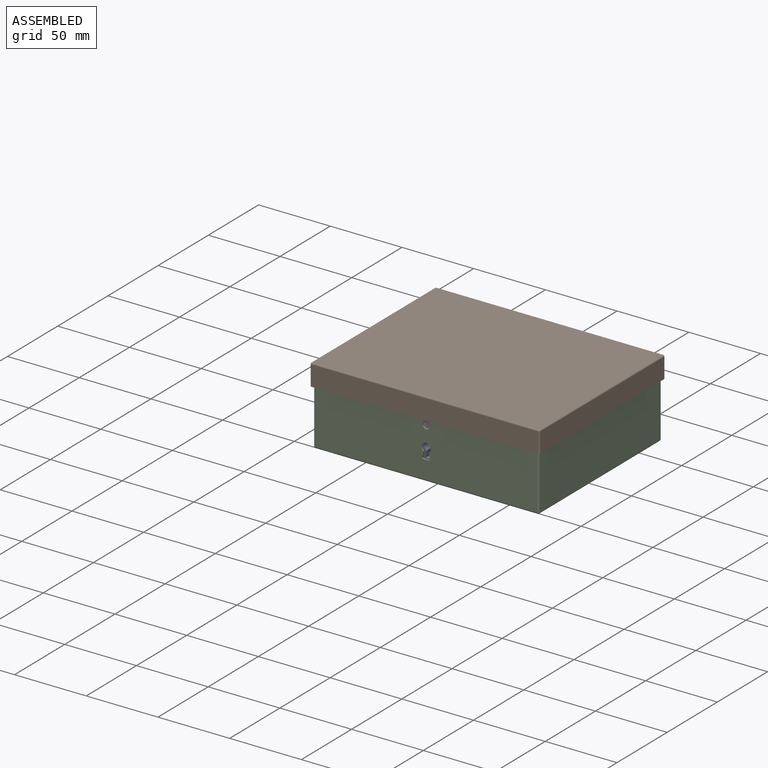
[diagram: assembled view]
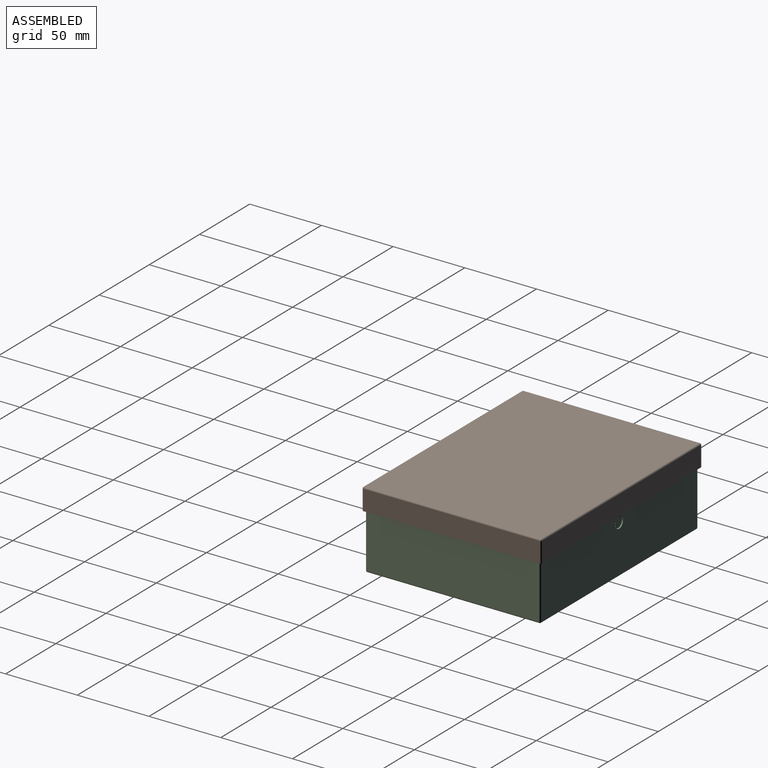
[diagram: assembled view, second angle]
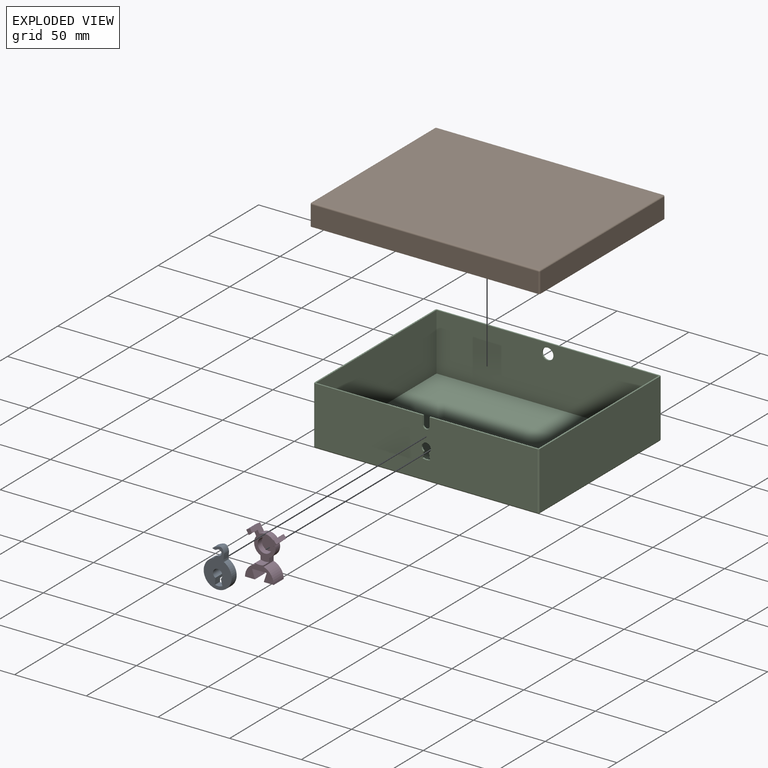
[diagram: exploded view]
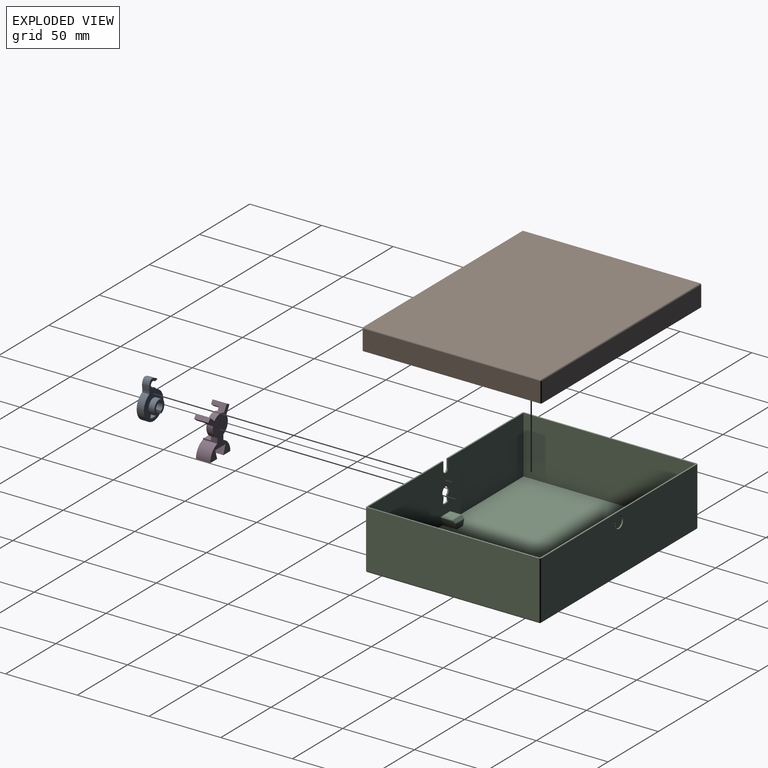
[diagram: exploded view, second angle]
ASSEMBLY  parts=4 mates=3
PART A: 12 faces, bbox 19.5x9x26.9 mm
  f0: cylinder r=5mm len=10mm, axis (0,-1,0), area 107.3mm2, adj f1,f3,f4,f11
  f1: plane 9x4.26mm, normal (0.95,0,-0.3), area 29.9mm2, adj f0,f2,f4,f5,f9,f11
  f2: cylinder r=3.25mm len=9mm, axis (0,-1,0), area 146.7mm2, adj f1,f3,f4,f5
  f3: plane 9x4.47mm, normal (-1,0,0), area 29.9mm2, adj f0,f2,f4,f5,f9,f11
  f4: plane 10x9.77mm, normal (0,1,0), area 37.8mm2, adj f0,f1,f2,f3
  f5: plane 26.88x19.5mm, normal (0,-1,0), area 277.5mm2, adj f1,f2,f3,f6,f7,f8,f9,f10
  f6: extruded ~5.04x5mm, area 26.9mm2, adj f5,f7,f10,f11
  f7: cylinder r=9.75mm len=19.5mm, axis (0,-1,0), area 268.9mm2, adj f5,f6,f8,f11
  f8: extruded ~9.47x7.44mm, area 96.1mm2, adj f5,f7,f10,f11
  f9: cylinder r=7.5mm len=5.15mm, axis (0,-1,0), area 26.6mm2, adj f1,f3,f5,f11
  f10: cylinder r=2mm len=5mm, axis (0,-1,0), area 34.9mm2, adj f5,f6,f8,f11
  f11: plane 26.88x19.5mm, normal (0,1,0), area 239.7mm2, adj f0,f1,f3,f6,f7,f8,f9,f10
PART B: 30 faces, bbox 160x125x15 mm
  f0: plane 123x14mm, normal (1,0,0), area 1722mm2, adj f5,f18,f22,f24
  f1: plane 158x14mm, normal (0,1,0), area 2212mm2, adj f5,f20,f24,f26
  f2: plane 123x14mm, normal (-1,0,0), area 1722mm2, adj f5,f21,f26,f28
  f3: plane 158x14mm, normal (0,-1,0), area 2212mm2, adj f5,f19,f22,f28
  f4: plane 158x123mm, normal (0,0,1), area 19434mm2, adj f18,f19,f20,f21
  f5: plane 160x125mm, normal (0,0,-1), area 565.1mm2, adj f0,f1,f2,f3,f6,f7,f8,f9
  f6: plane 123x14mm, normal (-1,0,0), area 1722mm2, adj f5,f7,f9,f10
  f7: plane 158x14mm, normal (0,-1,0), area 2167.8mm2, adj f5,f6,f8,f10,f16
  f8: plane 123x14mm, normal (1,0,0), area 1722mm2, adj f5,f7,f9,f10
  f9: plane 158x14mm, normal (0,1,0), area 2199.4mm2, adj f5,f6,f8,f10,f11
  f10: plane 158x123mm, normal (0,0,-1), area 19426mm2, adj f6,f7,f8,f9,f12,f13,f14,f15
  f11: cylinder r=2mm len=14mm, axis (0,-1,0), area 163.4mm2, adj f9,f12,f13,f14,f15
  f12: plane 5.53x2mm, normal (1,0,0), area 11.1mm2, adj f10,f11,f14,f15
  f13: plane 5.47x2mm, normal (-1,0,0), area 10.9mm2, adj f10,f11,f14,f15
  f14: plane 7.5x4mm, normal (0,1,0), area 28.3mm2, adj f10,f11,f12,f13
  f15: plane 5.47x4mm, normal (0,-1,0), area 15.7mm2, adj f10,f11,f12,f13
  f16: cylinder r=3.75mm len=7.5mm, axis (0,1,0), area 117.8mm2, adj f7,f17
  f17: plane 7.5x7.5mm, normal (0,-1,0), area 44.2mm2, adj f16
  f18: cylinder r=1mm len=123mm, axis (0,-1,0), area 193.2mm2, adj f0,f4,f23,f25
  f19: cylinder r=1mm len=158mm, axis (-1,0,0), area 248.2mm2, adj f3,f4,f23,f29
  f20: cylinder r=1mm len=158mm, axis (1,0,0), area 248.2mm2, adj f1,f4,f25,f27
  f21: cylinder r=1mm len=123mm, axis (0,1,0), area 193.2mm2, adj f2,f4,f27,f29
  f22: cylinder r=1mm len=14mm, axis (0,0,1), area 22mm2, adj f0,f3,f5,f23
  f23: sphere r=1mm, area 1.6mm2, adj f18,f19,f22
  f24: cylinder r=1mm len=14mm, axis (0,0,-1), area 22mm2, adj f0,f1,f5,f25
  f25: sphere r=1mm, area 1.6mm2, adj f18,f20,f24
  f26: cylinder r=1mm len=14mm, axis (0,0,1), area 22mm2, adj f1,f2,f5,f27
  f27: sphere r=1mm, area 1.6mm2, adj f20,f21,f26
  f28: cylinder r=1mm len=14mm, axis (0,0,-1), area 22mm2, adj f2,f3,f5,f29
  f29: sphere r=1mm, area 1.6mm2, adj f19,f21,f28
PART C: 38 faces, bbox 157x122x41 mm
  f0: plane 155x40mm, normal (0,1,0), area 6064mm2, adj f6,f7,f9,f10,f11,f12,f13,f16
  f1: plane 155x40mm, normal (0,-1,0), area 6111.7mm2, adj f6,f19,f22,f26,f30,f31,f32,f33
  f2: plane 120x40mm, normal (1,0,0), area 4800mm2, adj f6,f18,f22,f24
  f3: plane 155x40mm, normal (0,1,0), area 6149.7mm2, adj f6,f20,f24,f28,f37
  f4: plane 120x40mm, normal (-1,0,0), area 4800mm2, adj f6,f21,f26,f28
  f5: plane 155x120mm, normal (0,0,-1), area 18600mm2, adj f18,f19,f20,f21
  f6: plane 157x122mm, normal (0,0,1), area 548.6mm2, adj f0,f1,f2,f3,f4,f7,f8,f9
  f7: plane 120x40mm, normal (-1,0,0), area 4800mm2, adj f0,f6,f8,f10
  f8: plane 155x40mm, normal (0,-1,0), area 6149.7mm2, adj f6,f7,f9,f10,f37
  f9: plane 120x40mm, normal (1,0,0), area 4800mm2, adj f0,f6,f8,f10
  f10: plane 155x120mm, normal (0,0,1), area 18540mm2, adj f0,f7,f8,f9,f12,f13,f14
  f11: plane 9x8mm, normal (0,0,1), area 72mm2, adj f0,f15,f16,f17
  f12: plane 10x5.53mm, normal (0.95,0,-0.32), area 57mm2, adj f0,f10,f14,f15,f17
  f13: plane 10x5.53mm, normal (-0.95,0,-0.32), area 57mm2, adj f0,f10,f14,f15,f16
  f14: plane 8.67x4mm, normal (0,1,0), area 29.3mm2, adj f10,f12,f13,f15
  f15: plane 9.68x2mm, normal (0,0.71,0.71), area 26.1mm2, adj f11,f12,f13,f14,f16,f17
  f16: plane 8.47x0.47mm, normal (-0.81,0,0.58), area 4.8mm2, adj f0,f11,f13,f15
  f17: plane 8.47x0.47mm, normal (0.81,0,0.58), area 4.8mm2, adj f0,f11,f12,f15
  f18: cylinder r=1mm len=120mm, axis (0,-1,0), area 188.5mm2, adj f2,f5,f23,f25
  f19: cylinder r=1mm len=155mm, axis (-1,0,0), area 243.5mm2, adj f1,f5,f23,f27
  f20: cylinder r=1mm len=155mm, axis (1,0,0), area 243.5mm2, adj f3,f5,f25,f29
  f21: cylinder r=1mm len=120mm, axis (0,1,0), area 188.5mm2, adj f4,f5,f27,f29
  f22: cylinder r=1mm len=40mm, axis (0,0,-1), area 62.8mm2, adj f1,f2,f6,f23
  f23: sphere r=1mm, area 1.6mm2, adj f18,f19,f22
  f24: cylinder r=1mm len=40mm, axis (0,0,1), area 62.8mm2, adj f2,f3,f6,f25
  f25: sphere r=1mm, area 1.6mm2, adj f18,f20,f24
  f26: cylinder r=1mm len=40mm, axis (0,0,1), area 62.8mm2, adj f1,f4,f6,f27
  f27: sphere r=1mm, area 1.6mm2, adj f19,f21,f26
  f28: cylinder r=1mm len=40mm, axis (0,0,-1), area 62.8mm2, adj f3,f4,f6,f29
  f29: sphere r=1mm, area 1.6mm2, adj f20,f21,f28
  f30: plane 6x1mm, normal (-1,0,0), area 6mm2, adj f0,f1,f6,f31
  f31: cylinder r=2.25mm len=4.5mm, axis (0,1,0), area 7.1mm2, adj f0,f1,f30,f32
  f32: plane 6x1mm, normal (1,0,0), area 6mm2, adj f0,f1,f6,f31
  f33: cylinder r=3.25mm len=6.5mm, axis (0,-1,0), area 16.3mm2, adj f0,f1,f34,f36
  f34: plane 4.41x1mm, normal (0.99,0,-0.16), area 4.5mm2, adj f0,f1,f33,f35
  f35: cylinder r=7.5mm len=5.26mm, axis (0,-1,0), area 5.4mm2, adj f0,f1,f34,f36
  f36: plane 4.41x1mm, normal (-0.99,0,-0.16), area 4.5mm2, adj f0,f1,f33,f35
  f37: cylinder r=4mm len=8mm, axis (0,1,0), area 25.1mm2, adj f3,f8
PART D: 28 faces, bbox 21.9x10x31.3 mm
  f0: plane 10x5.31mm, normal (-0.87,0,-0.5), area 46.6mm2, adj f1,f11,f12,f20,f22,f25
  f1: plane 4.5x4.1mm, normal (0,-1,0), area 9.5mm2, adj f0,f10,f11,f22
  f2: plane 20x10.46mm, normal (0,-1,0), area 108.1mm2, adj f3,f4,f13,f14,f15,f16,f17,f18
  f3: cylinder r=10mm len=10mm, axis (0,-1,0), area 126.6mm2, adj f2,f4,f19,f20
  f4: plane 10x3.59mm, normal (1,0,0), area 21.2mm2, adj f2,f3,f5,f20,f23,f25
  f5: cylinder r=7.5mm len=8.99mm, axis (0,-1,0), area 48.8mm2, adj f4,f6,f20,f25
  f6: plane 10x4.69mm, normal (0.64,0,-0.77), area 46.6mm2, adj f5,f7,f20,f21,f24,f25
  f7: plane 10x2.3mm, normal (0.77,0,0.64), area 30mm2, adj f6,f8,f20,f21
  f8: plane 10x4.21mm, normal (-0.64,0,0.77), area 41.3mm2, adj f7,f9,f20,f21,f24,f25
  f9: cylinder r=7.5mm len=9.5mm, axis (0,-1,0), area 47.1mm2, adj f8,f10,f20,f25
  f10: plane 10x4.76mm, normal (0.87,0,0.5), area 41.2mm2, adj f1,f9,f11,f20,f22,f25
  f11: plane 10x2.6mm, normal (-0.5,0,0.87), area 30mm2, adj f0,f1,f10,f20
  f12: cylinder r=7.5mm len=11.33mm, axis (0,-1,0), area 60.6mm2, adj f0,f13,f20,f25
  f13: plane 10x3.59mm, normal (-1,0,0), area 21.2mm2, adj f2,f12,f14,f20,f23,f25
  f14: cylinder r=10mm len=10mm, axis (0,-1,0), area 126.6mm2, adj f2,f13,f15,f20
  f15: plane 10x6.9mm, normal (0,0,-1), area 69mm2, adj f2,f14,f16,f20
  f16: plane 10x6.2mm, normal (0.95,0,0.31), area 65.1mm2, adj f2,f15,f17,f20
  f17: plane 10.2x10mm, normal (0,0,-1), area 102mm2, adj f2,f16,f18,f20
  f18: plane 10x6.2mm, normal (-0.95,0,0.31), area 65.1mm2, adj f2,f17,f19,f20
  f19: plane 10x6.9mm, normal (0,0,-1), area 69mm2, adj f2,f3,f18,f20
  f20: plane 31.26x21.89mm, normal (0,1,0), area 334.3mm2, adj f0,f3,f4,f5,f6,f7,f8,f9
  f21: plane 4.52x4.23mm, normal (0,-1,0), area 9.5mm2, adj f6,f7,f8,f24
  f22: cylinder r=10mm len=5.5mm, axis (0,-1,0), area 16.8mm2, adj f0,f1,f10,f25
  f23: cylinder r=10mm len=6mm, axis (0,-1,0), area 33.5mm2, adj f2,f4,f13,f25
  f24: cylinder r=10mm len=5.5mm, axis (0,-1,0), area 16.8mm2, adj f6,f8,f21,f25
  f25: plane 18.66x16.74mm, normal (0,-1,0), area 128.8mm2, adj f0,f4,f5,f6,f8,f9,f10,f12
  f26: plane 10x10mm, normal (0,-1,0), area 78.5mm2, adj f27
  f27: cylinder r=5mm len=10mm, axis (0,-1,0), area 130.1mm2, adj f25,f26
PLACE A rot(axis=(0,-1,0),14.6deg) t=(-101.49,45.85,20.86)mm
PLACE B t=(-103.41,104.5,46.33)mm
PLACE C t=(-103.41,104.35,48.41)mm
PLACE D t=(-103.41,45.35,8.21)mm fixed
MATE revolute D.f5 <-> A.f0  axis (0,-1,0) through (-103.41,50.85,28.21)mm
MATE fastened D.f17 <-> C.f11  axis (0,0,-1) through (-103.41,50.35,14.41)mm
MATE slider C.f10 <-> B.f10  axis (0,0,1) through (-103.41,104.52,8.41)mm
